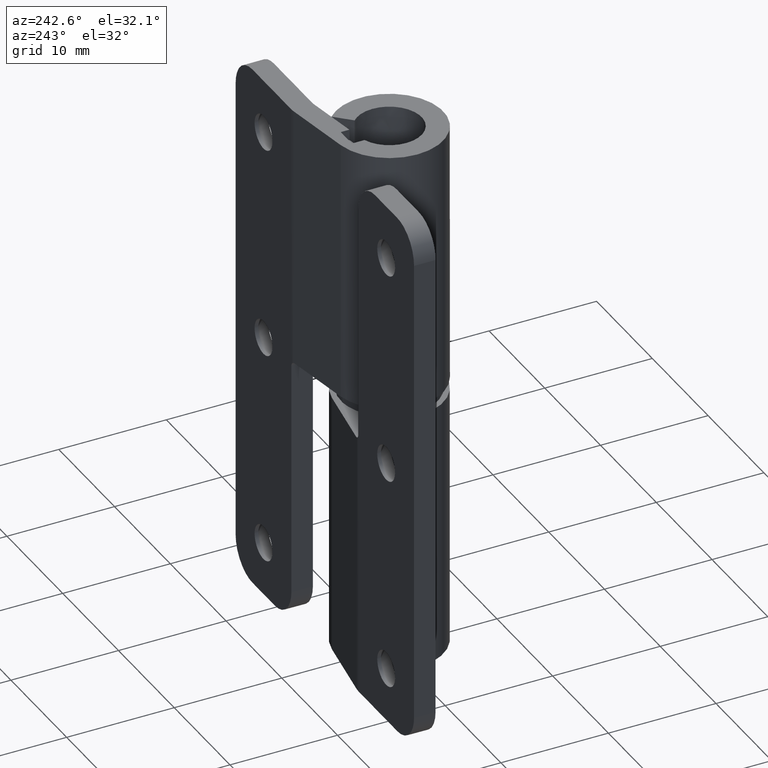
[diagram: clean part render]
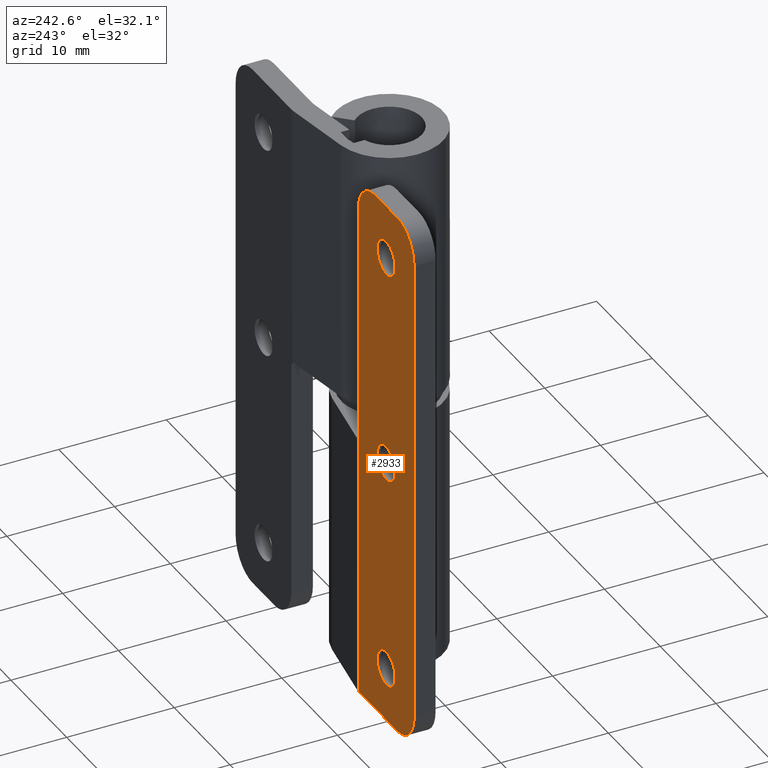
[diagram: same view with one face highlighted and labeled with its STEP entity id]
A machine part, auxiliary view. The second image highlights one B-rep face of the part: STEP entity #2933.
In plain terms, the highlighted face is a freeform B-spline surface patch.
Its self-contained STEP definition (entity closure, byte-faithful):
#1112=CARTESIAN_POINT('',(-9.402984322531671,6.000000000000100,45.097677663364642));
#1113=VERTEX_POINT('',#1112);
#1114=CARTESIAN_POINT('',(-11.0,6.000000000000100,43.399999999999999));
#1115=VERTEX_POINT('',#1114);
#1116=CARTESIAN_POINT('',(-9.402984322531669,6.000000000000100,45.097677663364635));
#1117=CARTESIAN_POINT('',(-9.399999999999999,6.000000000000100,45.048884421332325));
#1118=CARTESIAN_POINT('',(-9.399999999999999,6.000000000000100,45.0));
#1119=CARTESIAN_POINT('',(-9.399999999999999,6.000000000000100,43.399999999999991));
#1120=CARTESIAN_POINT('',(-11.0,6.000000000000100,43.399999999999999));
#1128=(BOUNDED_CURVE()B_SPLINE_CURVE(2,(#1116,#1117,#1118,#1119,#1120),.UNSPECIFIED.,.F.,.U.)B_SPLINE_CURVE_WITH_KNOTS((3,2,3),(0.239332962230207,0.250000000000000,0.500000000000000),.UNSPECIFIED.)CURVE()GEOMETRIC_REPRESENTATION_ITEM()RATIONAL_B_SPLINE_CURVE((0.976072041647994,0.987502787889602,1.0,0.707106781186548,1.0))REPRESENTATION_ITEM(''));
#1129=EDGE_CURVE('',#1113,#1115,#1128,.T.);
#1131=CARTESIAN_POINT('',(-12.597015677468329,6.000000000000100,44.902322336635372));
#1132=VERTEX_POINT('',#1131);
#1133=CARTESIAN_POINT('',(-11.0,6.000000000000100,43.399999999999999));
#1134=CARTESIAN_POINT('',(-12.505129706946317,6.000000000000100,43.399999999999999));
#1135=CARTESIAN_POINT('',(-12.597015677468324,6.000000000000100,44.902322336635358));
#1143=(BOUNDED_CURVE()B_SPLINE_CURVE(2,(#1133,#1134,#1135),.UNSPECIFIED.,.F.,.U.)B_SPLINE_CURVE_WITH_KNOTS((3,3),(0.500000000000000,0.739332962230206),.UNSPECIFIED.)CURVE()GEOMETRIC_REPRESENTATION_ITEM()RATIONAL_B_SPLINE_CURVE((1.0,0.719603993296946,0.976072041647994))REPRESENTATION_ITEM(''));
#1144=EDGE_CURVE('',#1115,#1132,#1143,.T.);
#1211=CARTESIAN_POINT('',(-11.0,6.000000000000100,46.599999999999987));
#1212=VERTEX_POINT('',#1211);
#1213=CARTESIAN_POINT('',(-11.0,6.000000000000100,46.599999999999987));
#1214=CARTESIAN_POINT('',(-9.494870293053683,6.000000000000100,46.599999999999994));
#1215=CARTESIAN_POINT('',(-9.402984322531671,6.000000000000100,45.097677663364628));
#1223=(BOUNDED_CURVE()B_SPLINE_CURVE(2,(#1213,#1214,#1215),.UNSPECIFIED.,.F.,.U.)B_SPLINE_CURVE_WITH_KNOTS((3,3),(0.0,0.239332962230206),.UNSPECIFIED.)CURVE()GEOMETRIC_REPRESENTATION_ITEM()RATIONAL_B_SPLINE_CURVE((1.0,0.719603993296946,0.976072041647993))REPRESENTATION_ITEM(''));
#1224=EDGE_CURVE('',#1212,#1113,#1223,.T.);
#1258=CARTESIAN_POINT('',(-12.597015677468331,6.000000000000100,44.902322336635358));
#1259=CARTESIAN_POINT('',(-12.599999999999996,6.000000000000100,44.951115578667682));
#1260=CARTESIAN_POINT('',(-12.600000000000000,6.000000000000100,45.0));
#1261=CARTESIAN_POINT('',(-12.599999999999996,6.000000000000100,46.599999999999987));
#1262=CARTESIAN_POINT('',(-11.0,6.000000000000100,46.599999999999987));
#1270=(BOUNDED_CURVE()B_SPLINE_CURVE(2,(#1258,#1259,#1260,#1261,#1262),.UNSPECIFIED.,.F.,.U.)B_SPLINE_CURVE_WITH_KNOTS((3,2,3),(0.739332962230206,0.750000000000000,1.0),.UNSPECIFIED.)CURVE()GEOMETRIC_REPRESENTATION_ITEM()RATIONAL_B_SPLINE_CURVE((0.976072041647992,0.987502787889601,1.0,0.707106781186548,1.0))REPRESENTATION_ITEM(''));
#1271=EDGE_CURVE('',#1132,#1212,#1270,.T.);
#1424=CARTESIAN_POINT('',(-9.402984322531669,6.000000000000099,25.097677663364639));
#1425=VERTEX_POINT('',#1424);
#1426=CARTESIAN_POINT('',(-11.0,6.000000000000100,23.399999999999999));
#1427=VERTEX_POINT('',#1426);
#1428=CARTESIAN_POINT('',(-9.402984322531669,6.000000000000099,25.097677663364642));
#1429=CARTESIAN_POINT('',(-9.399999999999999,6.000000000000099,25.048884421332332));
#1430=CARTESIAN_POINT('',(-9.399999999999999,6.000000000000100,25.0));
#1431=CARTESIAN_POINT('',(-9.399999999999999,6.000000000000100,23.400000000000009));
#1432=CARTESIAN_POINT('',(-11.0,6.000000000000100,23.399999999999999));
#1440=(BOUNDED_CURVE()B_SPLINE_CURVE(2,(#1428,#1429,#1430,#1431,#1432),.UNSPECIFIED.,.F.,.U.)B_SPLINE_CURVE_WITH_KNOTS((3,2,3),(0.239332962230206,0.250000000000000,0.500000000000000),.UNSPECIFIED.)CURVE()GEOMETRIC_REPRESENTATION_ITEM()RATIONAL_B_SPLINE_CURVE((0.976072041647993,0.987502787889602,1.0,0.707106781186548,1.0))REPRESENTATION_ITEM(''));
#1441=EDGE_CURVE('',#1425,#1427,#1440,.T.);
#1443=CARTESIAN_POINT('',(-12.597015677468329,6.000000000000100,24.902322336635368));
#1444=VERTEX_POINT('',#1443);
#1445=CARTESIAN_POINT('',(-11.0,6.000000000000100,23.399999999999999));
#1446=CARTESIAN_POINT('',(-12.505129706946322,6.000000000000100,23.399999999999999));
#1447=CARTESIAN_POINT('',(-12.597015677468328,6.000000000000100,24.902322336635375));
#1455=(BOUNDED_CURVE()B_SPLINE_CURVE(2,(#1445,#1446,#1447),.UNSPECIFIED.,.F.,.U.)B_SPLINE_CURVE_WITH_KNOTS((3,3),(0.500000000000000,0.739332962230207),.UNSPECIFIED.)CURVE()GEOMETRIC_REPRESENTATION_ITEM()RATIONAL_B_SPLINE_CURVE((1.0,0.719603993296945,0.976072041647994))REPRESENTATION_ITEM(''));
#1456=EDGE_CURVE('',#1427,#1444,#1455,.T.);
#1523=CARTESIAN_POINT('',(-11.0,6.000000000000100,26.600000000000001));
#1524=VERTEX_POINT('',#1523);
#1525=CARTESIAN_POINT('',(-11.0,6.000000000000100,26.600000000000001));
#1526=CARTESIAN_POINT('',(-9.494870293053680,6.000000000000100,26.599999999999994));
#1527=CARTESIAN_POINT('',(-9.402984322531673,6.000000000000100,25.097677663364632));
#1535=(BOUNDED_CURVE()B_SPLINE_CURVE(2,(#1525,#1526,#1527),.UNSPECIFIED.,.F.,.U.)B_SPLINE_CURVE_WITH_KNOTS((3,3),(0.0,0.239332962230206),.UNSPECIFIED.)CURVE()GEOMETRIC_REPRESENTATION_ITEM()RATIONAL_B_SPLINE_CURVE((1.0,0.719603993296946,0.976072041647993))REPRESENTATION_ITEM(''));
#1536=EDGE_CURVE('',#1524,#1425,#1535,.T.);
#1570=CARTESIAN_POINT('',(-12.597015677468331,6.000000000000100,24.902322336635372));
#1571=CARTESIAN_POINT('',(-12.599999999999998,6.000000000000100,24.951115578667675));
#1572=CARTESIAN_POINT('',(-12.600000000000000,6.000000000000100,25.0));
#1573=CARTESIAN_POINT('',(-12.599999999999996,6.000000000000100,26.599999999999991));
#1574=CARTESIAN_POINT('',(-11.0,6.000000000000100,26.600000000000001));
#1582=(BOUNDED_CURVE()B_SPLINE_CURVE(2,(#1570,#1571,#1572,#1573,#1574),.UNSPECIFIED.,.F.,.U.)B_SPLINE_CURVE_WITH_KNOTS((3,2,3),(0.739332962230207,0.750000000000000,1.0),.UNSPECIFIED.)CURVE()GEOMETRIC_REPRESENTATION_ITEM()RATIONAL_B_SPLINE_CURVE((0.976072041647995,0.987502787889602,1.0,0.707106781186548,1.0))REPRESENTATION_ITEM(''));
#1583=EDGE_CURVE('',#1444,#1524,#1582,.T.);
#1736=CARTESIAN_POINT('',(-9.402984322531671,6.000000000000100,5.097677663364634));
#1737=VERTEX_POINT('',#1736);
#1738=CARTESIAN_POINT('',(-11.0,6.000000000000100,3.400000000000000));
#1739=VERTEX_POINT('',#1738);
#1740=CARTESIAN_POINT('',(-9.402984322531671,6.000000000000100,5.097677663364634));
#1741=CARTESIAN_POINT('',(-9.399999999999999,6.000000000000100,5.048884421332326));
#1742=CARTESIAN_POINT('',(-9.399999999999999,6.000000000000100,5.0));
#1743=CARTESIAN_POINT('',(-9.399999999999999,6.000000000000100,3.400000000000001));
#1744=CARTESIAN_POINT('',(-11.0,6.000000000000100,3.400000000000000));
#1752=(BOUNDED_CURVE()B_SPLINE_CURVE(2,(#1740,#1741,#1742,#1743,#1744),.UNSPECIFIED.,.F.,.U.)B_SPLINE_CURVE_WITH_KNOTS((3,2,3),(0.239332962230207,0.250000000000000,0.500000000000000),.UNSPECIFIED.)CURVE()GEOMETRIC_REPRESENTATION_ITEM()RATIONAL_B_SPLINE_CURVE((0.976072041647994,0.987502787889602,1.0,0.707106781186548,1.0))REPRESENTATION_ITEM(''));
#1753=EDGE_CURVE('',#1737,#1739,#1752,.T.);
#1755=CARTESIAN_POINT('',(-12.597015677468329,6.000000000000100,4.902322336635367));
#1756=VERTEX_POINT('',#1755);
#1757=CARTESIAN_POINT('',(-11.0,6.000000000000100,3.400000000000000));
#1758=CARTESIAN_POINT('',(-12.505129706946317,6.000000000000100,3.400000000000000));
#1759=CARTESIAN_POINT('',(-12.597015677468331,6.000000000000100,4.902322336635367));
#1767=(BOUNDED_CURVE()B_SPLINE_CURVE(2,(#1757,#1758,#1759),.UNSPECIFIED.,.F.,.U.)B_SPLINE_CURVE_WITH_KNOTS((3,3),(0.500000000000000,0.739332962230207),.UNSPECIFIED.)CURVE()GEOMETRIC_REPRESENTATION_ITEM()RATIONAL_B_SPLINE_CURVE((1.0,0.719603993296946,0.976072041647994))REPRESENTATION_ITEM(''));
#1768=EDGE_CURVE('',#1739,#1756,#1767,.T.);
#1835=CARTESIAN_POINT('',(-11.0,6.000000000000100,6.600000000000000));
#1836=VERTEX_POINT('',#1835);
#1837=CARTESIAN_POINT('',(-11.0,6.000000000000100,6.600000000000000));
#1838=CARTESIAN_POINT('',(-9.494870293053676,6.000000000000100,6.599999999999999));
#1839=CARTESIAN_POINT('',(-9.402984322531671,6.000000000000100,5.097677663364634));
#1847=(BOUNDED_CURVE()B_SPLINE_CURVE(2,(#1837,#1838,#1839),.UNSPECIFIED.,.F.,.U.)B_SPLINE_CURVE_WITH_KNOTS((3,3),(0.0,0.239332962230207),.UNSPECIFIED.)CURVE()GEOMETRIC_REPRESENTATION_ITEM()RATIONAL_B_SPLINE_CURVE((1.0,0.719603993296946,0.976072041647994))REPRESENTATION_ITEM(''));
#1848=EDGE_CURVE('',#1836,#1737,#1847,.T.);
#1882=CARTESIAN_POINT('',(-12.597015677468331,6.000000000000100,4.902322336635367));
#1883=CARTESIAN_POINT('',(-12.599999999999996,6.000000000000100,4.951115578667675));
#1884=CARTESIAN_POINT('',(-12.600000000000000,6.000000000000100,5.0));
#1885=CARTESIAN_POINT('',(-12.599999999999996,6.000000000000100,6.599999999999999));
#1886=CARTESIAN_POINT('',(-11.0,6.000000000000100,6.600000000000000));
#1894=(BOUNDED_CURVE()B_SPLINE_CURVE(2,(#1882,#1883,#1884,#1885,#1886),.UNSPECIFIED.,.F.,.U.)B_SPLINE_CURVE_WITH_KNOTS((3,2,3),(0.739332962230207,0.750000000000000,1.0),.UNSPECIFIED.)CURVE()GEOMETRIC_REPRESENTATION_ITEM()RATIONAL_B_SPLINE_CURVE((0.976072041647994,0.987502787889602,1.0,0.707106781186548,1.0))REPRESENTATION_ITEM(''));
#1895=EDGE_CURVE('',#1756,#1836,#1894,.T.);
#2442=CARTESIAN_POINT('',(-6.000000000000070,6.000000000000091,25.0));
#2443=VERTEX_POINT('',#2442);
#2486=CARTESIAN_POINT('',(-6.000000000000070,6.000000000000091,47.0));
#2487=VERTEX_POINT('',#2486);
#2493=CARTESIAN_POINT('',(-9.0,6.000000000000100,50.0));
#2494=VERTEX_POINT('',#2493);
#2495=CARTESIAN_POINT('',(-9.0,6.000000000000100,50.0));
#2496=CARTESIAN_POINT('',(-5.999999999999999,6.000000000000100,50.0));
#2497=CARTESIAN_POINT('',(-5.999999999999999,6.000000000000100,47.0));
#2505=(BOUNDED_CURVE()B_SPLINE_CURVE(2,(#2495,#2496,#2497),.UNSPECIFIED.,.F.,.U.)CURVE()GEOMETRIC_REPRESENTATION_ITEM()QUASI_UNIFORM_CURVE()RATIONAL_B_SPLINE_CURVE((1.0,0.707106781186548,1.0))REPRESENTATION_ITEM(''));
#2506=EDGE_CURVE('',#2494,#2487,#2505,.T.);
#2530=CARTESIAN_POINT('',(-16.0,6.000000000000100,47.0));
#2531=VERTEX_POINT('',#2530);
#2532=CARTESIAN_POINT('',(-13.000000000000201,6.000000000000100,50.0));
#2533=VERTEX_POINT('',#2532);
#2534=CARTESIAN_POINT('',(-16.0,6.000000000000100,47.0));
#2535=CARTESIAN_POINT('',(-16.000000000000195,6.000000000000100,50.0));
#2536=CARTESIAN_POINT('',(-13.000000000000201,6.000000000000100,50.0));
#2544=(BOUNDED_CURVE()B_SPLINE_CURVE(2,(#2534,#2535,#2536),.UNSPECIFIED.,.F.,.U.)CURVE()GEOMETRIC_REPRESENTATION_ITEM()QUASI_UNIFORM_CURVE()RATIONAL_B_SPLINE_CURVE((1.0,0.707106781186548,1.0))REPRESENTATION_ITEM(''));
#2545=EDGE_CURVE('',#2531,#2533,#2544,.T.);
#2575=CARTESIAN_POINT('',(-13.000000000000201,6.000000000000100,0.0));
#2576=VERTEX_POINT('',#2575);
#2577=CARTESIAN_POINT('',(-16.0,6.000000000000100,3.0));
#2578=VERTEX_POINT('',#2577);
#2579=CARTESIAN_POINT('',(-13.000000000000201,6.000000000000100,0.0));
#2580=CARTESIAN_POINT('',(-16.000000000000195,6.000000000000100,0.0));
#2581=CARTESIAN_POINT('',(-16.000000000000199,6.000000000000100,3.0));
#2589=(BOUNDED_CURVE()B_SPLINE_CURVE(2,(#2579,#2580,#2581),.UNSPECIFIED.,.F.,.U.)CURVE()GEOMETRIC_REPRESENTATION_ITEM()QUASI_UNIFORM_CURVE()RATIONAL_B_SPLINE_CURVE((1.0,0.707106781186548,1.0))REPRESENTATION_ITEM(''));
#2590=EDGE_CURVE('',#2576,#2578,#2589,.T.);
#2613=CARTESIAN_POINT('',(-6.000000000000070,6.000000000000091,47.0));
#2614=CARTESIAN_POINT('',(-6.000000000000070,6.000000000000091,25.0));
#2615=QUASI_UNIFORM_CURVE('',1,(#2613,#2614),.UNSPECIFIED.,.F.,.U.);
#2616=EDGE_CURVE('',#2487,#2443,#2615,.T.);
#2690=CARTESIAN_POINT('',(-16.0,6.000000000000100,47.0));
#2691=CARTESIAN_POINT('',(-16.0,6.000000000000100,3.0));
#2692=QUASI_UNIFORM_CURVE('',1,(#2690,#2691),.UNSPECIFIED.,.F.,.U.);
#2693=EDGE_CURVE('',#2531,#2578,#2692,.T.);
#2706=CARTESIAN_POINT('',(-9.0,6.000000000000100,50.0));
#2707=CARTESIAN_POINT('',(-13.000000000000201,6.000000000000100,50.0));
#2708=QUASI_UNIFORM_CURVE('',1,(#2706,#2707),.UNSPECIFIED.,.F.,.U.);
#2709=EDGE_CURVE('',#2494,#2533,#2708,.T.);
#2731=CARTESIAN_POINT('',(-6.000000000000070,6.000000000000091,0.0));
#2732=VERTEX_POINT('',#2731);
#2733=CARTESIAN_POINT('',(-6.000000000000070,6.000000000000091,25.0));
#2734=CARTESIAN_POINT('',(-6.000000000000070,6.000000000000091,0.0));
#2735=QUASI_UNIFORM_CURVE('',1,(#2733,#2734),.UNSPECIFIED.,.F.,.U.);
#2736=EDGE_CURVE('',#2443,#2732,#2735,.T.);
#2888=CARTESIAN_POINT('',(-6.000000000000070,6.000000000000091,0.0));
#2889=CARTESIAN_POINT('',(-13.000000000000201,6.000000000000100,0.0));
#2890=QUASI_UNIFORM_CURVE('',1,(#2888,#2889),.UNSPECIFIED.,.F.,.U.);
#2891=EDGE_CURVE('',#2732,#2576,#2890,.T.);
#2900=CARTESIAN_POINT('',(-16.499499980618051,6.000000000000100,52.497499903090286));
#2901=CARTESIAN_POINT('',(-16.499499980618051,6.000000000000100,-2.497501244194806));
#2902=CARTESIAN_POINT('',(-5.500499751161112,6.000000000000100,52.497499903090301));
#2903=CARTESIAN_POINT('',(-5.500499751161112,6.000000000000100,-2.497501244194806));
#2904=B_SPLINE_SURFACE_WITH_KNOTS('',1,1,((#2900,#2902),(#2901,#2903)),.UNSPECIFIED.,.F.,.F.,.U.,(2,2),(2,2),(0.0,54.995001147285109),(0.0,10.999000229456939),.UNSPECIFIED.);
#2905=ORIENTED_EDGE('',*,*,#2891,.T.);
#2906=ORIENTED_EDGE('',*,*,#2590,.T.);
#2907=ORIENTED_EDGE('',*,*,#2693,.F.);
#2908=ORIENTED_EDGE('',*,*,#2545,.T.);
#2909=ORIENTED_EDGE('',*,*,#2709,.F.);
#2910=ORIENTED_EDGE('',*,*,#2506,.T.);
#2911=ORIENTED_EDGE('',*,*,#2616,.T.);
#2912=ORIENTED_EDGE('',*,*,#2736,.T.);
#2913=EDGE_LOOP('',(#2905,#2906,#2907,#2908,#2909,#2910,#2911,#2912));
#2914=FACE_OUTER_BOUND('',#2913,.T.);
#2915=ORIENTED_EDGE('',*,*,#1768,.F.);
#2916=ORIENTED_EDGE('',*,*,#1753,.F.);
#2917=ORIENTED_EDGE('',*,*,#1848,.F.);
#2918=ORIENTED_EDGE('',*,*,#1895,.F.);
#2919=EDGE_LOOP('',(#2915,#2916,#2917,#2918));
#2920=FACE_BOUND('',#2919,.T.);
#2921=ORIENTED_EDGE('',*,*,#1456,.F.);
#2922=ORIENTED_EDGE('',*,*,#1441,.F.);
#2923=ORIENTED_EDGE('',*,*,#1536,.F.);
#2924=ORIENTED_EDGE('',*,*,#1583,.F.);
#2925=EDGE_LOOP('',(#2921,#2922,#2923,#2924));
#2926=FACE_BOUND('',#2925,.T.);
#2927=ORIENTED_EDGE('',*,*,#1144,.F.);
#2928=ORIENTED_EDGE('',*,*,#1129,.F.);
#2929=ORIENTED_EDGE('',*,*,#1224,.F.);
#2930=ORIENTED_EDGE('',*,*,#1271,.F.);
#2931=EDGE_LOOP('',(#2927,#2928,#2929,#2930));
#2932=FACE_BOUND('',#2931,.T.);
#2933=ADVANCED_FACE('',(#2914,#2920,#2926,#2932),#2904,.F.);